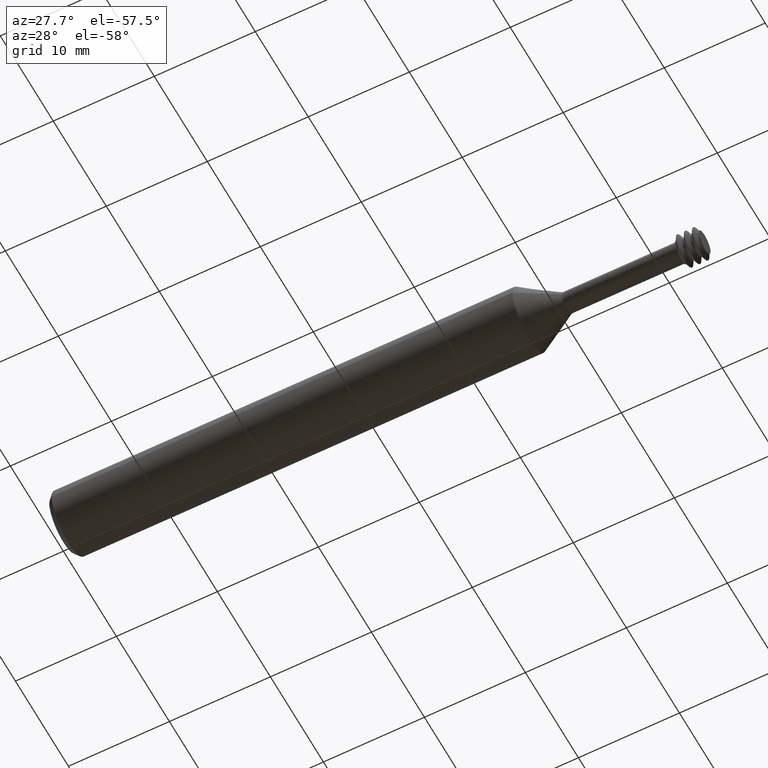
[diagram: clean part render]
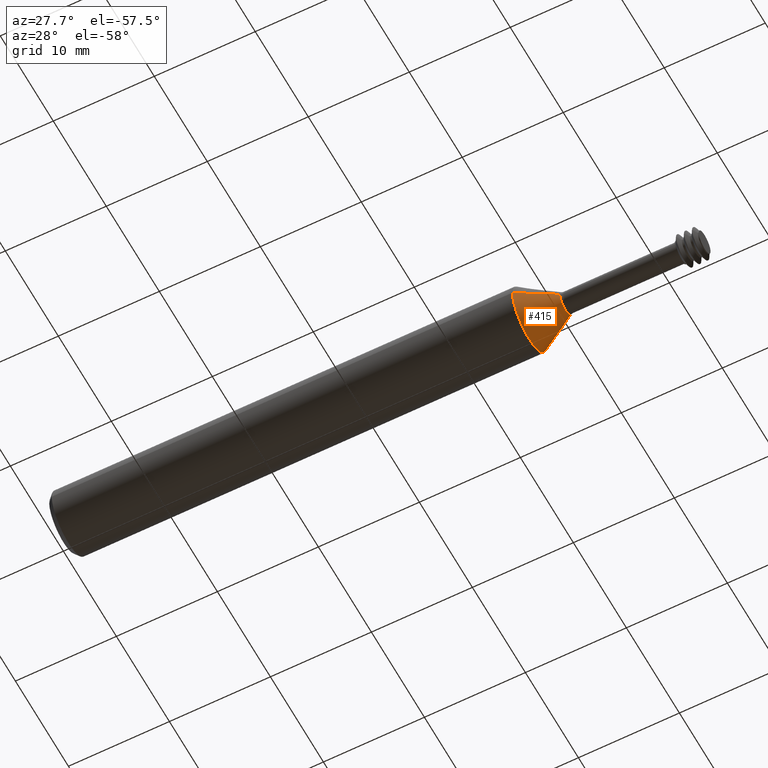
[diagram: same view with one face highlighted and labeled with its STEP entity id]
A machine part, auxiliary view. The second image highlights one B-rep face of the part: STEP entity #415.
In plain terms, the highlighted conical surface has half-angle 30 deg.
Its self-contained STEP definition (entity closure, byte-faithful):
#7 = CARTESIAN_POINT ( 'NONE',  ( 1.816336759167003656, 0.1248500000000000026, 1.528971528735470422E-17 ) ) ;
#10 = DIRECTION ( 'NONE',  ( 0.000000000000000000, -1.000000000000000000, 0.000000000000000000 ) ) ;
#49 = VERTEX_POINT ( 'NONE', #7 ) ;
#75 = DIRECTION ( 'NONE',  ( -1.000000000000000000, 3.312725351696573770E-18, -0.000000000000000000 ) ) ;
#118 = VERTEX_POINT ( 'NONE', #733 ) ;
#161 = DIRECTION ( 'NONE',  ( -1.000000000000000000, 3.312725351696573770E-18, -0.000000000000000000 ) ) ;
#267 = AXIS2_PLACEMENT_3D ( 'NONE', #637, #161, #1030 ) ;
#293 = VECTOR ( 'NONE', #343, 39.37007874015748854 ) ;
#319 = ORIENTED_EDGE ( 'NONE', *, *, #518, .T. ) ;
#340 = LINE ( 'NONE', #659, #293 ) ;
#343 = DIRECTION ( 'NONE',  ( -0.8660254037844379305, 0.5000000000000009992, 6.123233995736778362E-17 ) ) ;
#366 = AXIS2_PLACEMENT_3D ( 'NONE', #726, #75, #10 ) ;
#388 = EDGE_CURVE ( 'NONE', #888, #588, #586, .T. ) ;
#415 = ADVANCED_FACE ( 'NONE', ( #949 ), #830, .T. ) ;
#455 = EDGE_CURVE ( 'NONE', #49, #118, #957, .T. ) ;
#518 = EDGE_CURVE ( 'NONE', #588, #118, #540, .T. ) ;
#532 = ORIENTED_EDGE ( 'NONE', *, *, #388, .T. ) ;
#537 = ORIENTED_EDGE ( 'NONE', *, *, #455, .F. ) ;
#540 = LINE ( 'NONE', #711, #1018 ) ;
#551 = EDGE_CURVE ( 'NONE', #888, #49, #340, .T. ) ;
#586 = CIRCLE ( 'NONE', #761, 0.04334936490538921633 ) ;
#588 = VERTEX_POINT ( 'NONE', #987 ) ;
#600 = DIRECTION ( 'NONE',  ( -1.000000000000000000, 3.312725351696573770E-18, -0.000000000000000000 ) ) ;
#637 = CARTESIAN_POINT ( 'NONE',  ( 1.816336759167003656, 5.749672063720403816E-18, 0.000000000000000000 ) ) ;
#659 = CARTESIAN_POINT ( 'NONE',  ( 1.957500000000000462, 0.04334936490538921633, 5.308766097645548990E-18 ) ) ;
#672 = CARTESIAN_POINT ( 'NONE',  ( 1.957500000000000462, 0.04334936490538922327, 1.029924069250012853E-17 ) ) ;
#678 = CARTESIAN_POINT ( 'NONE',  ( 1.957500000000000462, 5.282037017085286357E-18, 0.000000000000000000 ) ) ;
#709 = ORIENTED_EDGE ( 'NONE', *, *, #551, .F. ) ;
#711 = CARTESIAN_POINT ( 'NONE',  ( 1.957500000000000462, -0.04334936490538919551, 0.000000000000000000 ) ) ;
#726 = CARTESIAN_POINT ( 'NONE',  ( 1.957500000000000462, 5.282037017085286357E-18, 0.000000000000000000 ) ) ;
#733 = CARTESIAN_POINT ( 'NONE',  ( 1.816336759167003656, -0.1248500000000000026, 0.000000000000000000 ) ) ;
#761 = AXIS2_PLACEMENT_3D ( 'NONE', #678, #600, #850 ) ;
#810 = EDGE_LOOP ( 'NONE', ( #709, #532, #319, #537 ) ) ;
#830 = CONICAL_SURFACE ( 'NONE', #366, 0.04334936490538920245, 0.5235987755983001479 ) ;
#850 = DIRECTION ( 'NONE',  ( 0.000000000000000000, -1.000000000000000000, 0.000000000000000000 ) ) ;
#877 = DIRECTION ( 'NONE',  ( -0.8660254037844379305, -0.5000000000000009992, 0.000000000000000000 ) ) ;
#888 = VERTEX_POINT ( 'NONE', #672 ) ;
#949 = FACE_OUTER_BOUND ( 'NONE', #810, .T. ) ;
#957 = CIRCLE ( 'NONE', #267, 0.1248500000000000026 ) ;
#987 = CARTESIAN_POINT ( 'NONE',  ( 1.957500000000000462, -0.04334936490538920245, 0.000000000000000000 ) ) ;
#1018 = VECTOR ( 'NONE', #877, 39.37007874015748854 ) ;
#1030 = DIRECTION ( 'NONE',  ( 0.000000000000000000, -1.000000000000000000, 0.000000000000000000 ) ) ;